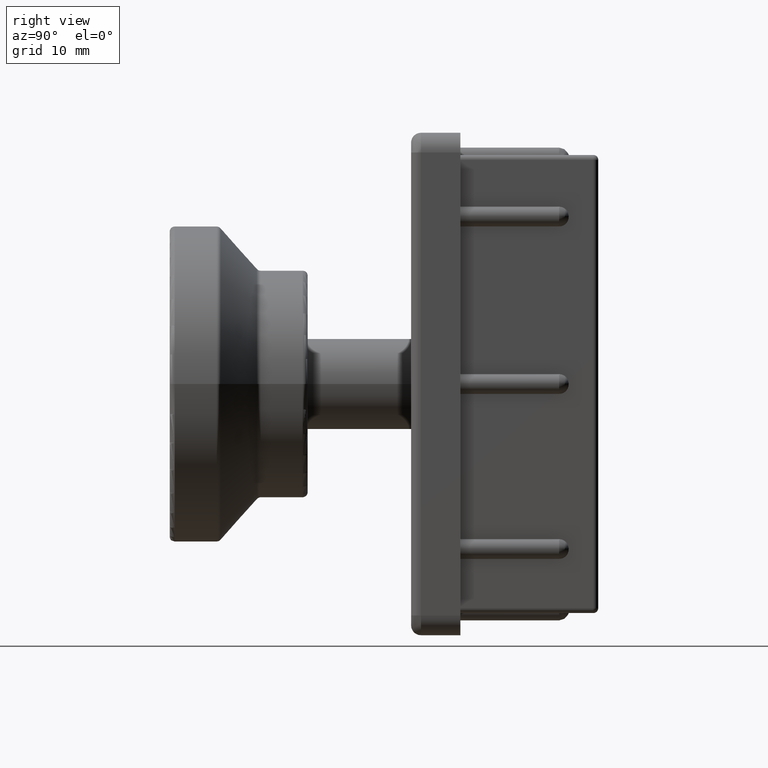
[diagram: clean part render]
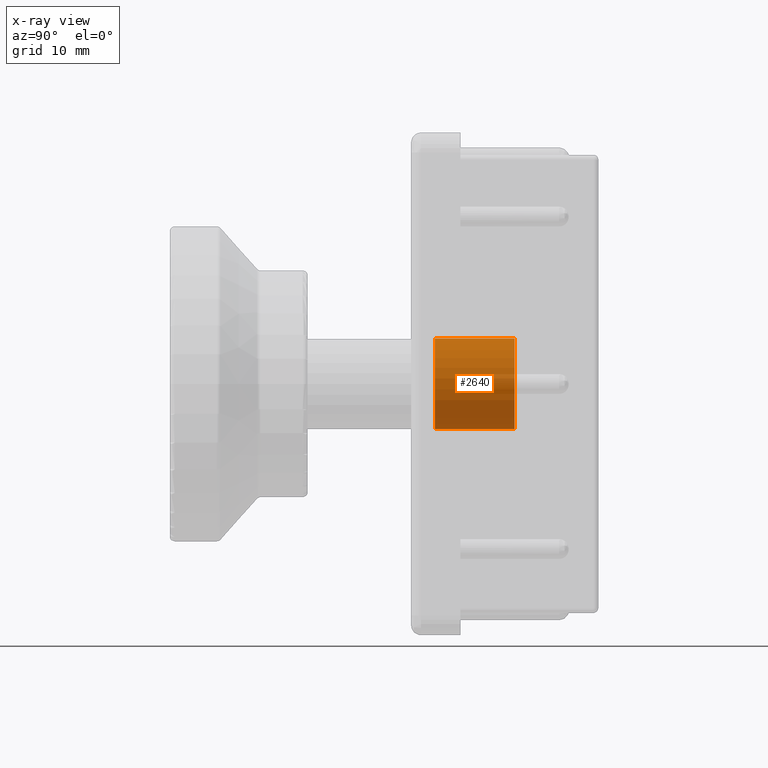
[diagram: x-ray — body ghosted, one internal face saturated and labeled with its STEP entity id]
A machine part, right view, then the same camera in x-ray: the body is ghosted and one INTERNAL B-rep face — a face not visible from any outside direction — is saturated and labeled: STEP entity #2640.
In plain terms, the highlighted cylindrical surface (bore or boss wall) has radius 4.6 mm, axis along (0, -1, -0).
Its self-contained STEP definition (entity closure, byte-faithful):
#78=FACE_BOUND('',#556,.T.);
#178=CIRCLE('',#2879,4.6);
#179=CIRCLE('',#2881,4.6);
#384=FACE_OUTER_BOUND('',#555,.T.);
#555=EDGE_LOOP('',(#2292));
#556=EDGE_LOOP('',(#2293));
#1293=VERTEX_POINT('',#5330);
#1294=VERTEX_POINT('',#5333);
#1641=EDGE_CURVE('',#1293,#1293,#178,.T.);
#1642=EDGE_CURVE('',#1294,#1294,#179,.T.);
#2292=ORIENTED_EDGE('',*,*,#1642,.F.);
#2293=ORIENTED_EDGE('',*,*,#1641,.T.);
#2523=CYLINDRICAL_SURFACE('',#2880,4.6);
#2640=ADVANCED_FACE('',(#384,#78),#2523,.F.);
#2879=AXIS2_PLACEMENT_3D('',#5331,#3493,#3494);
#2880=AXIS2_PLACEMENT_3D('',#5332,#3495,#3496);
#2881=AXIS2_PLACEMENT_3D('',#5334,#3497,#3498);
#3493=DIRECTION('center_axis',(0.,1.,0.));
#3494=DIRECTION('ref_axis',(1.,0.,0.));
#3495=DIRECTION('center_axis',(0.,1.,0.));
#3496=DIRECTION('ref_axis',(1.,0.,0.));
#3497=DIRECTION('center_axis',(0.,1.,0.));
#3498=DIRECTION('ref_axis',(1.,0.,0.));
#5330=CARTESIAN_POINT('',(27.85,16.6,-13.25));
#5331=CARTESIAN_POINT('Origin',(23.25,16.6,-13.25));
#5332=CARTESIAN_POINT('Origin',(23.25,-45.6338566591584,-13.25));
#5333=CARTESIAN_POINT('',(18.65,8.5,-13.25));
#5334=CARTESIAN_POINT('Origin',(23.25,8.5,-13.25));